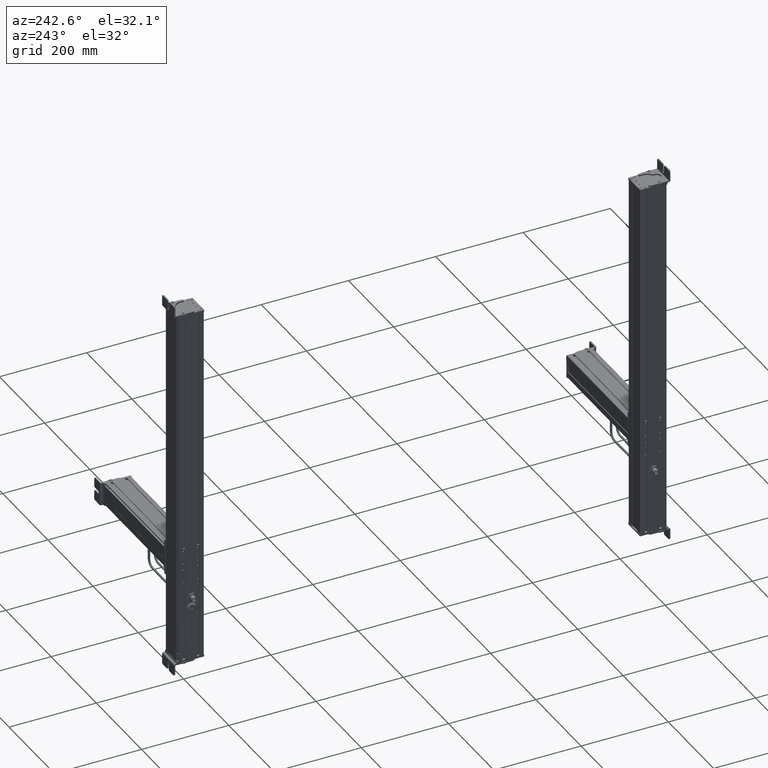
[diagram: clean part render]
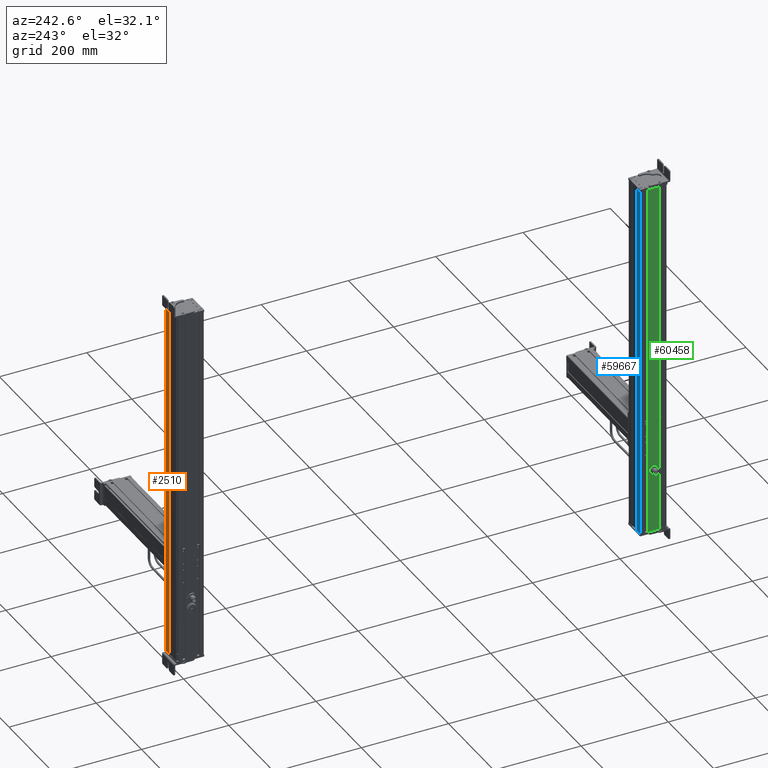
[diagram: same view with three faces highlighted in distinct colors, each labeled with its STEP entity id]
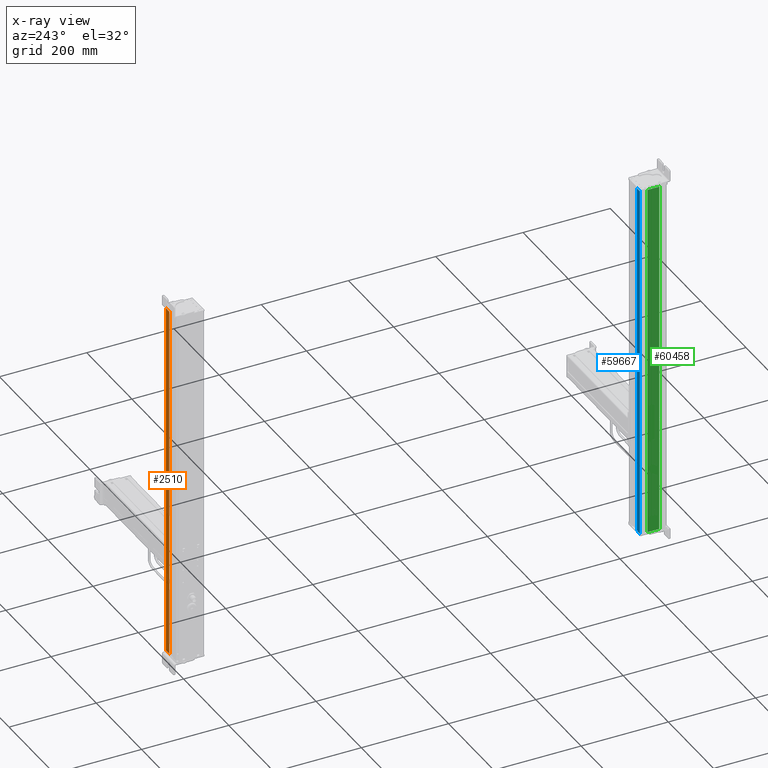
[diagram: x-ray of the same camera — body ghosted, the three highlighted faces saturated]
A machine part, auxiliary view with three faces highlighted in distinct colors.
The next image is the same camera in x-ray (body ghosted, the three faces saturated) — at least one of them is partly hidden behind the body in this view.
Their STEP definitions:

[orange] entity #2510 — the highlighted planar face has unit normal (0, 1, 0).
#2458=CARTESIAN_POINT('Vertex',(617.246770587,120.060780121,0.)) ;
#2461=CARTESIAN_POINT('Line Origine',(617.246770587,120.060780121,411.)) ;
#2465=CARTESIAN_POINT('Vertex',(617.246770587,120.060780121,822.)) ;
#2480=CARTESIAN_POINT('Axis2P3D Location',(647.67209889,120.060780121,0.)) ;
#2485=CARTESIAN_POINT('Line Origine',(624.483052148,120.060780121,0.)) ;
#2489=CARTESIAN_POINT('Vertex',(631.719333708,120.060780121,0.)) ;
#2492=CARTESIAN_POINT('Line Origine',(631.719333708,120.060780121,411.)) ;
#2496=CARTESIAN_POINT('Vertex',(631.719333708,120.060780121,822.)) ;
#2499=CARTESIAN_POINT('Line Origine',(624.483052148,120.060780121,822.)) ;
#2462=DIRECTION('Vector Direction',(0.,0.,1.)) ;
#2481=DIRECTION('Axis2P3D Direction',(0.,-1.,0.)) ;
#2482=DIRECTION('Axis2P3D XDirection',(1.,0.,0.)) ;
#2486=DIRECTION('Vector Direction',(1.,0.,0.)) ;
#2493=DIRECTION('Vector Direction',(0.,0.,1.)) ;
#2500=DIRECTION('Vector Direction',(1.,0.,0.)) ;
#2483=AXIS2_PLACEMENT_3D('Plane Axis2P3D',#2480,#2481,#2482) ;
#2505=ORIENTED_EDGE('',*,*,#2467,.F.) ;
#2506=ORIENTED_EDGE('',*,*,#2491,.T.) ;
#2507=ORIENTED_EDGE('',*,*,#2498,.T.) ;
#2508=ORIENTED_EDGE('',*,*,#2503,.F.) ;
#2463=VECTOR('Line Direction',#2462,1.) ;
#2487=VECTOR('Line Direction',#2486,1.) ;
#2494=VECTOR('Line Direction',#2493,1.) ;
#2501=VECTOR('Line Direction',#2500,1.) ;
#2510=ADVANCED_FACE('Body.2',(#2509),#2484,.T.) ;
#2467=EDGE_CURVE('',#2459,#2466,#2464,.T.) ;
#2491=EDGE_CURVE('',#2459,#2490,#2488,.T.) ;
#2498=EDGE_CURVE('',#2490,#2497,#2495,.T.) ;
#2503=EDGE_CURVE('',#2466,#2497,#2502,.T.) ;
#2504=EDGE_LOOP('',(#2505,#2506,#2507,#2508)) ;
#2509=FACE_OUTER_BOUND('',#2504,.T.) ;
#2464=LINE('Line',#2461,#2463) ;
#2488=LINE('Line',#2485,#2487) ;
#2495=LINE('Line',#2492,#2494) ;
#2502=LINE('Line',#2499,#2501) ;
#2484=PLANE('Plane',#2483) ;
#2459=VERTEX_POINT('',#2458) ;
#2466=VERTEX_POINT('',#2465) ;
#2490=VERTEX_POINT('',#2489) ;
#2497=VERTEX_POINT('',#2496) ;

[blue] entity #59667 — the highlighted planar face has unit normal (0, 1, 0).
#59615=CARTESIAN_POINT('Vertex',(627.895548938,182.060203323,0.)) ;
#59618=CARTESIAN_POINT('Line Origine',(627.895548938,182.060203323,411.)) ;
#59622=CARTESIAN_POINT('Vertex',(627.895548938,182.060203323,822.)) ;
#59637=CARTESIAN_POINT('Axis2P3D Location',(664.195883662,182.060203323,0.)) ;
#59642=CARTESIAN_POINT('Line Origine',(621.545548937,182.060203323,0.)) ;
#59646=CARTESIAN_POINT('Vertex',(615.195548937,182.060203323,0.)) ;
#59649=CARTESIAN_POINT('Line Origine',(615.195548937,182.060203323,411.)) ;
#59653=CARTESIAN_POINT('Vertex',(615.195548937,182.060203323,822.)) ;
#59656=CARTESIAN_POINT('Line Origine',(621.545548937,182.060203323,822.)) ;
#59619=DIRECTION('Vector Direction',(0.,0.,1.)) ;
#59638=DIRECTION('Axis2P3D Direction',(0.,1.,-0.)) ;
#59639=DIRECTION('Axis2P3D XDirection',(-1.,0.,0.)) ;
#59643=DIRECTION('Vector Direction',(-1.,0.,0.)) ;
#59650=DIRECTION('Vector Direction',(0.,0.,1.)) ;
#59657=DIRECTION('Vector Direction',(-1.,0.,0.)) ;
#59640=AXIS2_PLACEMENT_3D('Plane Axis2P3D',#59637,#59638,#59639) ;
#59662=ORIENTED_EDGE('',*,*,#59624,.F.) ;
#59663=ORIENTED_EDGE('',*,*,#59648,.T.) ;
#59664=ORIENTED_EDGE('',*,*,#59655,.T.) ;
#59665=ORIENTED_EDGE('',*,*,#59660,.F.) ;
#59620=VECTOR('Line Direction',#59619,1.) ;
#59644=VECTOR('Line Direction',#59643,1.) ;
#59651=VECTOR('Line Direction',#59650,1.) ;
#59658=VECTOR('Line Direction',#59657,1.) ;
#59667=ADVANCED_FACE('Body.2',(#59666),#59641,.T.) ;
#59624=EDGE_CURVE('',#59616,#59623,#59621,.T.) ;
#59648=EDGE_CURVE('',#59616,#59647,#59645,.T.) ;
#59655=EDGE_CURVE('',#59647,#59654,#59652,.T.) ;
#59660=EDGE_CURVE('',#59623,#59654,#59659,.T.) ;
#59661=EDGE_LOOP('',(#59662,#59663,#59664,#59665)) ;
#59666=FACE_OUTER_BOUND('',#59661,.T.) ;
#59621=LINE('Line',#59618,#59620) ;
#59645=LINE('Line',#59642,#59644) ;
#59652=LINE('Line',#59649,#59651) ;
#59659=LINE('Line',#59656,#59658) ;
#59641=PLANE('Plane',#59640) ;
#59616=VERTEX_POINT('',#59615) ;
#59623=VERTEX_POINT('',#59622) ;
#59647=VERTEX_POINT('',#59646) ;
#59654=VERTEX_POINT('',#59653) ;

[green] entity #60458 — the highlighted planar face has unit normal (-1, 0, 0).
#59699=CARTESIAN_POINT('Axis2P3D Location',(613.195548937,133.067790275,0.)) ;
#60411=CARTESIAN_POINT('Vertex',(613.195548938,166.010394004,0.)) ;
#60414=CARTESIAN_POINT('Line Origine',(613.195548938,166.010394004,411.)) ;
#60418=CARTESIAN_POINT('Vertex',(613.195548938,166.010394004,822.)) ;
#60433=CARTESIAN_POINT('Line Origine',(613.195548937,152.38909214,0.)) ;
#60437=CARTESIAN_POINT('Vertex',(613.195548937,138.767790274,0.)) ;
#60440=CARTESIAN_POINT('Line Origine',(613.195548937,138.767790274,411.)) ;
#60444=CARTESIAN_POINT('Vertex',(613.195548937,138.767790274,822.)) ;
#60447=CARTESIAN_POINT('Line Origine',(613.195548937,152.38909214,822.)) ;
#59700=DIRECTION('Axis2P3D Direction',(-1.,0.,0.)) ;
#59701=DIRECTION('Axis2P3D XDirection',(0.,-1.,0.)) ;
#60415=DIRECTION('Vector Direction',(0.,0.,1.)) ;
#60434=DIRECTION('Vector Direction',(0.,-1.,0.)) ;
#60441=DIRECTION('Vector Direction',(0.,0.,1.)) ;
#60448=DIRECTION('Vector Direction',(0.,-1.,0.)) ;
#59702=AXIS2_PLACEMENT_3D('Plane Axis2P3D',#59699,#59700,#59701) ;
#60453=ORIENTED_EDGE('',*,*,#60420,.F.) ;
#60454=ORIENTED_EDGE('',*,*,#60439,.T.) ;
#60455=ORIENTED_EDGE('',*,*,#60446,.T.) ;
#60456=ORIENTED_EDGE('',*,*,#60451,.F.) ;
#60416=VECTOR('Line Direction',#60415,1.) ;
#60435=VECTOR('Line Direction',#60434,1.) ;
#60442=VECTOR('Line Direction',#60441,1.) ;
#60449=VECTOR('Line Direction',#60448,1.) ;
#60458=ADVANCED_FACE('Body.2',(#60457),#59703,.T.) ;
#60420=EDGE_CURVE('',#60412,#60419,#60417,.T.) ;
#60439=EDGE_CURVE('',#60412,#60438,#60436,.T.) ;
#60446=EDGE_CURVE('',#60438,#60445,#60443,.T.) ;
#60451=EDGE_CURVE('',#60419,#60445,#60450,.T.) ;
#60452=EDGE_LOOP('',(#60453,#60454,#60455,#60456)) ;
#60457=FACE_OUTER_BOUND('',#60452,.T.) ;
#60417=LINE('Line',#60414,#60416) ;
#60436=LINE('Line',#60433,#60435) ;
#60443=LINE('Line',#60440,#60442) ;
#60450=LINE('Line',#60447,#60449) ;
#59703=PLANE('Plane',#59702) ;
#60412=VERTEX_POINT('',#60411) ;
#60419=VERTEX_POINT('',#60418) ;
#60438=VERTEX_POINT('',#60437) ;
#60445=VERTEX_POINT('',#60444) ;